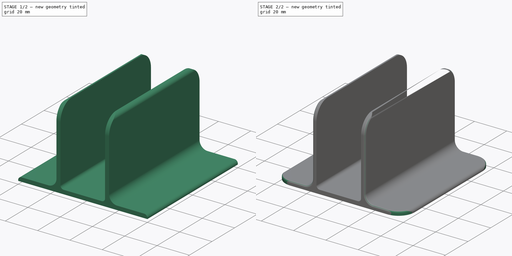
[diagram: build sequence overview — one tinted view per stage of 2, left to right]
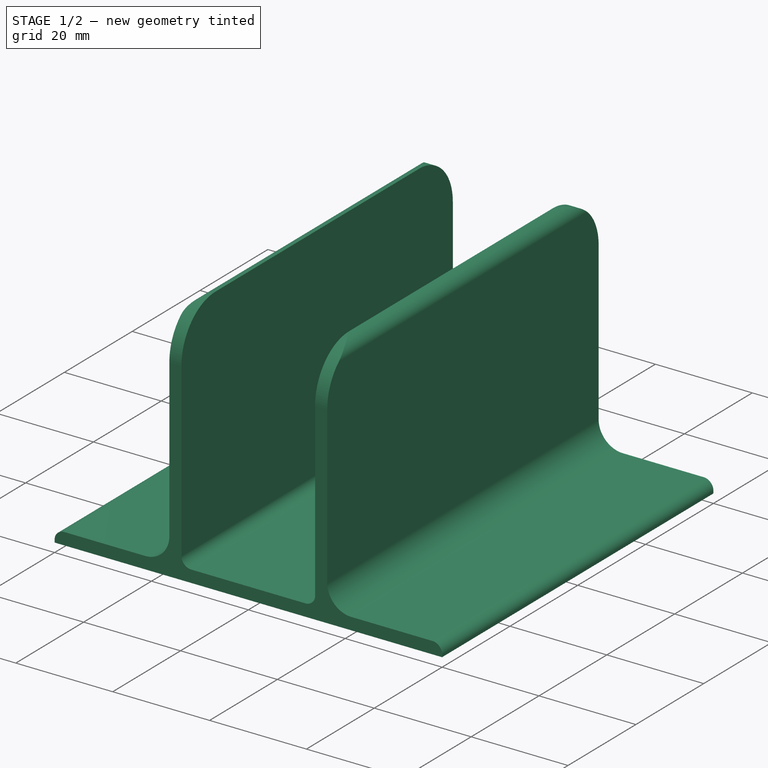
[diagram: stage 1 of 2 — iso view after this stage's code; geometry added in this stage tinted green]
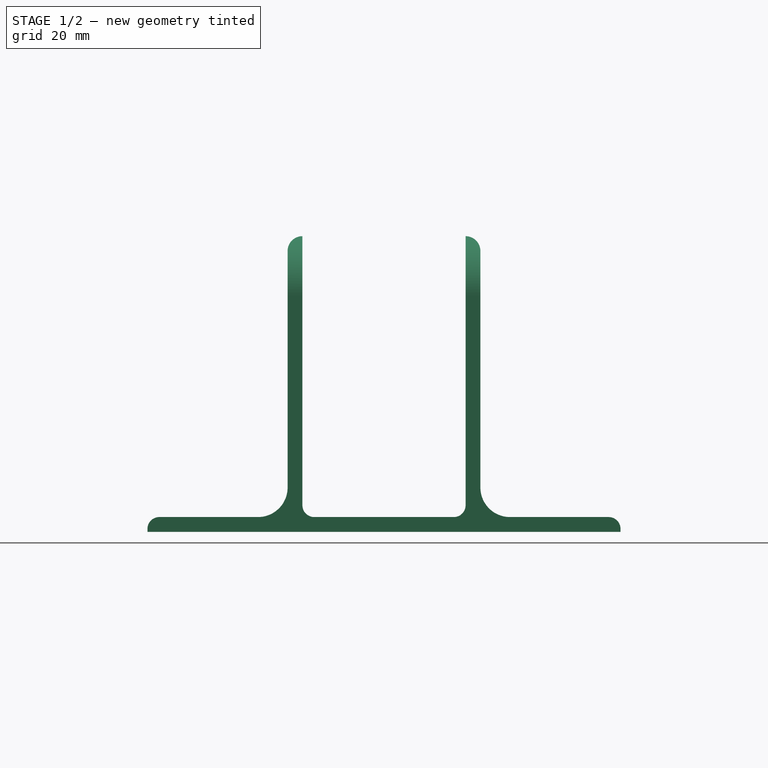
[diagram: stage 1 of 2 — front view after this stage's code; geometry added in this stage tinted green]
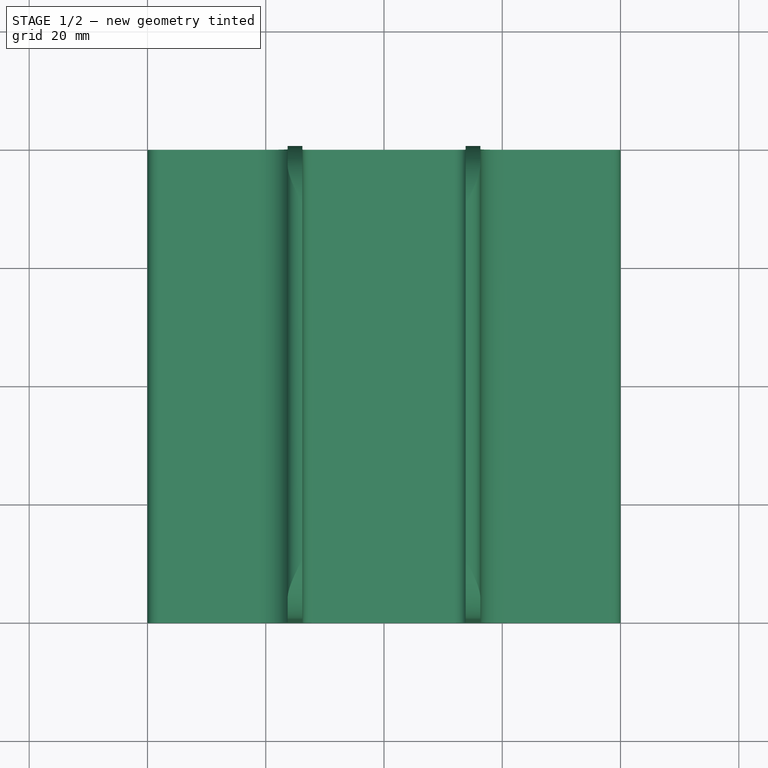
[diagram: stage 1 of 2 — top view after this stage's code; geometry added in this stage tinted green]
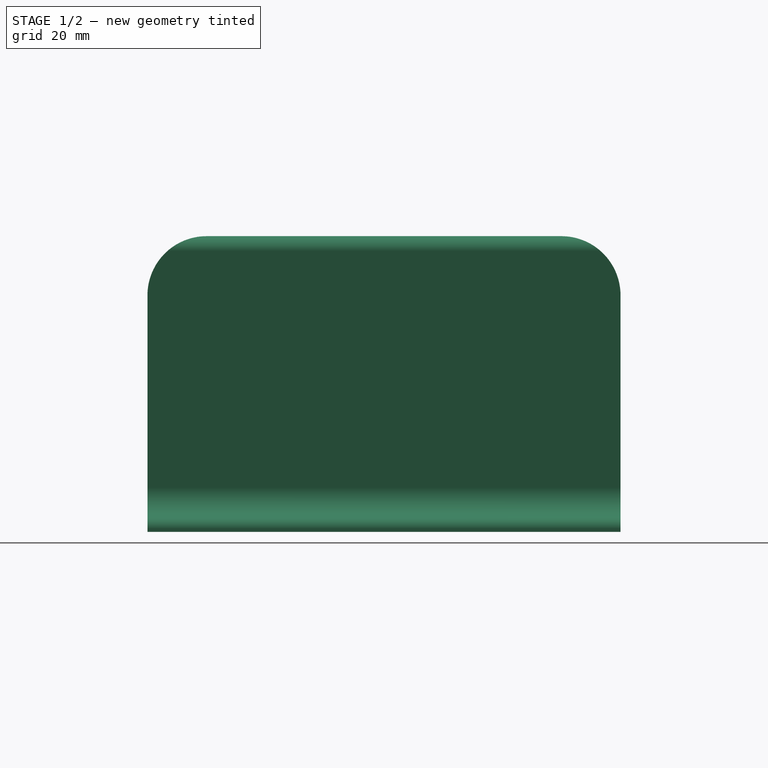
[diagram: stage 1 of 2 — right view after this stage's code; geometry added in this stage tinted green]
FCSTD DOCUMENT  (FreeCAD 1.0R39319 (Git))
Label: Charger Stand-2.0
License: Creative Commons Attribution 4.0
LicenseURL: https://creativecommons.org/licenses/by/4.0/
objects: Sketcher::SketchObject×3, PartDesign::Pocket×2, PartDesign::Pad×1, PartDesign::Fillet×1, PartDesign::Body×1
note: 19 computed .brp shape members not serialized (recipe doc carries the construction recipe); baked Part::Feature solids carry a one-line shape summary decoded from their .brp

FEATURE [Sketcher::SketchObject] Sketch
  ArcFitTolerance = 1e-06
  AttachmentSupport = -> [XZ_Plane]
  FullyConstrained = true
  MakeInternals = false
  MapMode = 5
  Placement = pos=(0,0,0) rot=(1,0,0;1.5708rad)
  sketch-geometry (18):
    g0: LineSegment StartX=-40 StartY=0 StartZ=0 EndX=40 EndY=0 EndZ=0
    g1: LineSegment StartX=38 StartY=2.5 StartZ=0 EndX=21.3 EndY=2.5 EndZ=0
    g2: LineSegment StartX=-38 StartY=2.5 StartZ=0 EndX=-21.3 EndY=2.5 EndZ=0
    g3: LineSegment StartX=-16.3 StartY=7.5 StartZ=0 EndX=-16.3 EndY=47.5 EndZ=0
    g4: LineSegment StartX=-13.8 StartY=50 StartZ=0 EndX=-13.8 EndY=4.5 EndZ=0
    g5: LineSegment StartX=-11.8 StartY=2.5 StartZ=0 EndX=11.8 EndY=2.5 EndZ=0
    g6: LineSegment StartX=13.8 StartY=4.5 StartZ=0 EndX=13.8 EndY=50 EndZ=0
    g7: LineSegment StartX=16.3 StartY=47.5 StartZ=0 EndX=16.3 EndY=7.5 EndZ=0
    g8: ArcOfCircle CenterX=-13.8 CenterY=47.5 CenterZ=0 NormalX=0 NormalY=0 NormalZ=1 AngleXU=0 Radius=2.5 StartAngle=1.5708 EndAngle=3.14159
    g9: ArcOfCircle CenterX=13.8 CenterY=47.5 CenterZ=0 NormalX=0 NormalY=0 NormalZ=1 AngleXU=0 Radius=2.5 StartAngle=-9e-16 EndAngle=1.5708
    g10: ArcOfCircle CenterX=21.3 CenterY=7.5 CenterZ=0 NormalX=0 NormalY=0 NormalZ=1 AngleXU=0 Radius=5 StartAngle=3.14159 EndAngle=4.71239
    g11: ArcOfCircle CenterX=11.8 CenterY=4.5 CenterZ=0 NormalX=0 NormalY=0 NormalZ=1 AngleXU=0 Radius=2 StartAngle=4.71239 EndAngle=6.28319
    g12: ArcOfCircle CenterX=-11.8 CenterY=4.5 CenterZ=0 NormalX=0 NormalY=0 NormalZ=1 AngleXU=0 Radius=2 StartAngle=3.14159 EndAngle=4.71239
    g13: ArcOfCircle CenterX=-21.3 CenterY=7.5 CenterZ=0 NormalX=0 NormalY=0 NormalZ=1 AngleXU=0 Radius=5 StartAngle=4.71239 EndAngle=6.28319
    g14: LineSegment StartX=40 StartY=0 StartZ=0 EndX=40 EndY=0.5 EndZ=0
    g15: LineSegment StartX=-40 StartY=0 StartZ=0 EndX=-40 EndY=0.5 EndZ=0
    g16: ArcOfCircle CenterX=38 CenterY=0.5 CenterZ=0 NormalX=0 NormalY=0 NormalZ=1 AngleXU=0 Radius=2 StartAngle=0 EndAngle=1.5708
    g17: ArcOfCircle CenterX=-38 CenterY=0.5 CenterZ=0 NormalX=0 NormalY=0 NormalZ=1 AngleXU=0 Radius=2 StartAngle=1.5708 EndAngle=3.14159
  constraints (47):
    c: PointOnObject(g0,g-1)
    c: Horizontal(g1)
    c: Horizontal(g2)
    c: Vertical(g3)
    c: Vertical(g4)
    c: Horizontal(g5)
    c: Vertical(g6)
    c: Vertical(g7)
    c: Coincident(g8,g4)
    c: Coincident(g9,g6)
    c: Symmetric(g0,g0,g-2)
    c: Tangent(g10,g1) = 1.5708
    c: Tangent(g10,g7) = -1.5708
    c: Tangent(g11,g6) = -1.5708
    c: Tangent(g11,g5) = -1.5708
    c: Tangent(g12,g5) = -1.5708
    c: Tangent(g12,g4) = -1.5708
    c: Tangent(g13,g3) = -1.5708
    c: Tangent(g13,g2) = -1.5708
    c: Tangent(g8,g3) = 1.5708
    c: Perpendicular(g8,g4)
    c: Perpendicular(g9,g6)
    c: Tangent(g9,g7) = 1.5708
    c: Coincident(g14,g0)
    c: Coincident(g15,g0)
    c: Vertical(g15)
    c: Tangent(g17,g15) = 1.5708
    c: Tangent(g17,g2) = 1.5708
    c: Tangent(g16,g14) = -1.5708
    c: Tangent(g16,g1) = -1.5708
    c: Vertical(g14)
    c: Equal(g14,g15)
    c: Equal(g17,g12)
    c: Equal(g12,g11)
    c: Equal(g11,g16)
    c: Equal(g8,g9)
    c: Equal(g2,g1)
    c: Equal(g7,g3)
    c: Equal(g4,g6)
    c: Radius(g16) = 2
    c: DistanceY(g1) = 2.5
    c: DistanceX(g4,g6) = 27.6
    c: Radius(g9) = 2.5
    c: Radius(g10) = 5
    c: Horizontal(g5,g1)
    c: DistanceY(g6) = 50
    c: DistanceX(g0,g0) = 80
FEATURE [PartDesign::Pad] Pad
  Direction = (0,-1,2e-16)
  Length = 80
  Length2 = 10
  Midplane = true
  Placement = pos=(0,0,0) rot=(1,0,0;1.5708rad)
  Profile = -> Sketch
  ReferenceAxis = -> Sketch [N_Axis]
  Refine = true
  Suppressed = false
  Type = 0
FEATURE [Sketcher::SketchObject] Sketch001
  ArcFitTolerance = 1e-06
  AttachmentSupport = -> [Pad]
  ExternalGeometry = -> [Pad]
  FullyConstrained = true
  MakeInternals = false
  MapMode = 5
  Placement = pos=(16.3,0,0) rot=(0.707107,0,0.707107;3.14159rad)
  sketch-geometry (6):
    g0: LineSegment StartX=50 StartY=40 StartZ=0 EndX=40 EndY=40 EndZ=0
    g1: LineSegment StartX=50 StartY=40 StartZ=0 EndX=50 EndY=30 EndZ=0
    g2: LineSegment StartX=50 StartY=-40 StartZ=0 EndX=50 EndY=-30 EndZ=0
    g3: LineSegment StartX=50 StartY=-40 StartZ=0 EndX=40 EndY=-40 EndZ=0
    g4: ArcOfCircle CenterX=40 CenterY=30 CenterZ=0 NormalX=0 NormalY=0 NormalZ=1 AngleXU=0 Radius=10 StartAngle=0 EndAngle=1.5708
    g5: ArcOfCircle CenterX=40 CenterY=-30 CenterZ=0 NormalX=0 NormalY=0 NormalZ=1 AngleXU=0 Radius=10 StartAngle=4.71239 EndAngle=6.28319
  constraints (17):
    c: Coincident(g0,g-3)
    c: Horizontal(g0)
    c: Coincident(g1,g0)
    c: PointOnObject(g1,g-3)
    c: Coincident(g2,g-3)
    c: PointOnObject(g2,g-3)
    c: Coincident(g3,g2)
    c: Horizontal(g3)
    c: Equal(g2,g3)
    c: Equal(g3,g1)
    c: Equal(g1,g0)
    c: Coincident(g4,g0)
    c: Coincident(g5,g2)
    c: Coincident(g5,g3)
    c: Tangent(g4,g1) = 1.5708
    c: Radius(g4) = 10
    c: Equal(g5,g4)
FEATURE [PartDesign::Pocket] Pocket
  BaseFeature = -> Pad
  Direction = (-1,0,2e-16)
  Length = 5
  Length2 = 5
  Placement = pos=(0,0,0) rot=(1,0,0;1.5708rad)
  Profile = -> Sketch001
  ReferenceAxis = -> Sketch001 [N_Axis]
  Refine = true
  Suppressed = false
  Type = 1
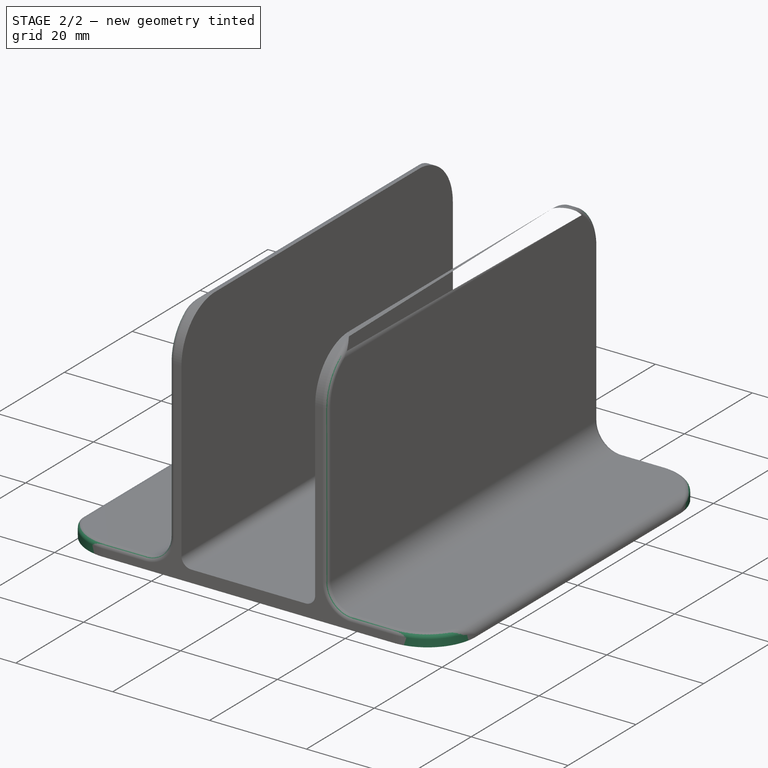
[diagram: stage 2 of 2 — iso view after this stage's code; geometry added in this stage tinted green]
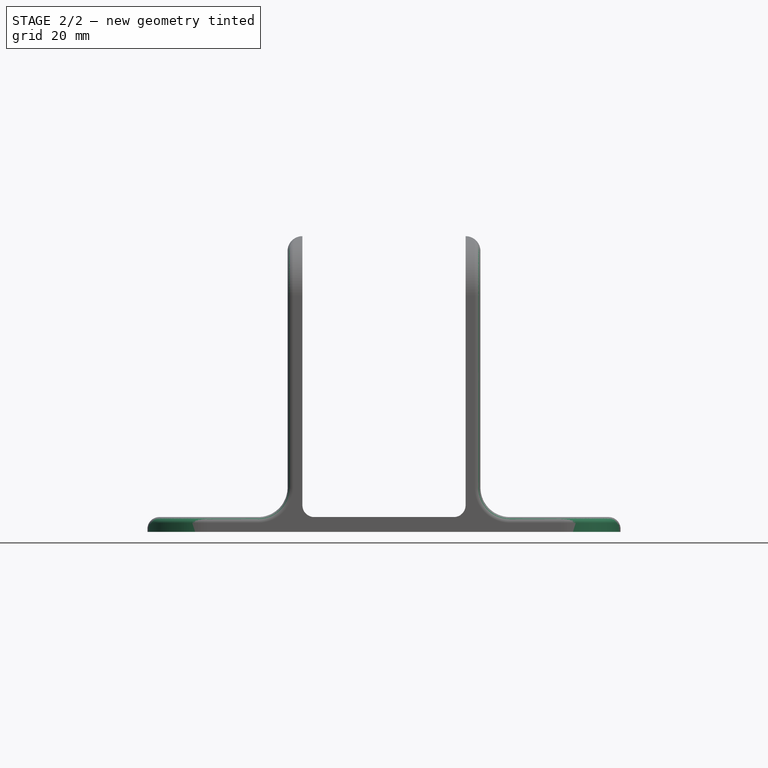
[diagram: stage 2 of 2 — front view after this stage's code; geometry added in this stage tinted green]
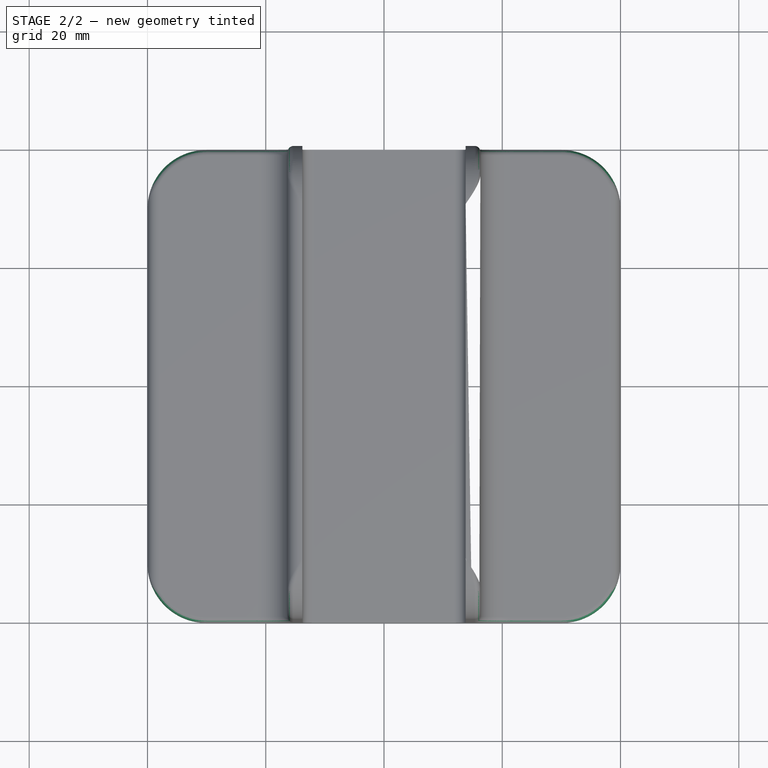
[diagram: stage 2 of 2 — top view after this stage's code; geometry added in this stage tinted green]
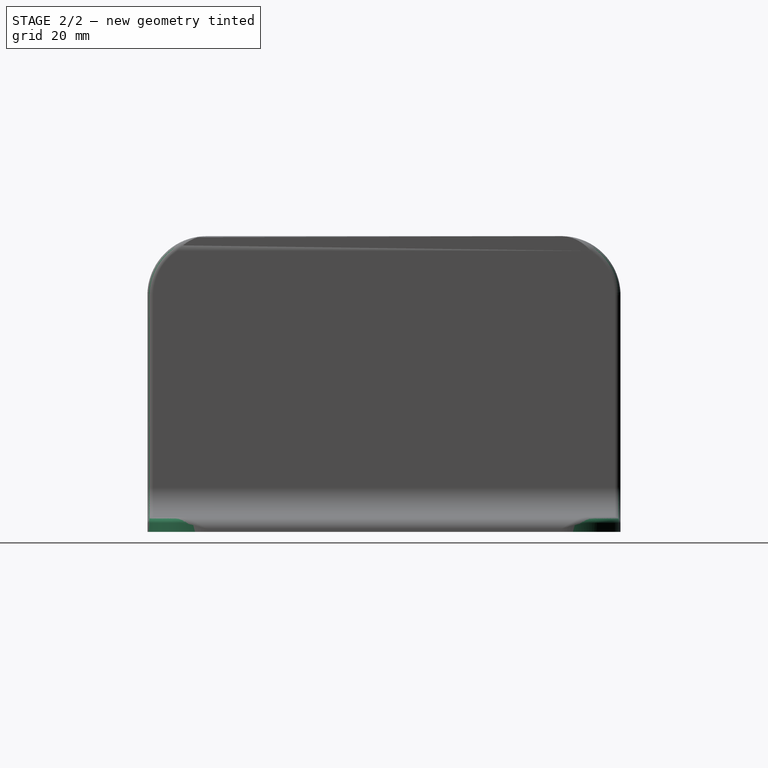
[diagram: stage 2 of 2 — right view after this stage's code; geometry added in this stage tinted green]
FEATURE [Sketcher::SketchObject] Sketch002
  ArcFitTolerance = 1e-06
  AttachmentSupport = -> [Pocket]
  ExternalGeometry = -> [Pocket]
  FullyConstrained = true
  MakeInternals = false
  MapMode = 5
  Placement = pos=(0,6e-16,2.5) rot=(0,0,1;3.14159rad)
  sketch-geometry (12):
    g0: LineSegment StartX=-40 StartY=30 StartZ=0 EndX=-40 EndY=40 EndZ=0
    g1: LineSegment StartX=-40 StartY=40 StartZ=0 EndX=-30 EndY=40 EndZ=0
    g2: LineSegment StartX=30 StartY=40 StartZ=0 EndX=40 EndY=40 EndZ=0
    g3: LineSegment StartX=40 StartY=40 StartZ=0 EndX=40 EndY=30 EndZ=0
    g4: LineSegment StartX=40 StartY=-30 StartZ=0 EndX=40 EndY=-40 EndZ=0
    g5: LineSegment StartX=40 StartY=-40 StartZ=0 EndX=30 EndY=-40 EndZ=0
    g6: LineSegment StartX=-40 StartY=-40 StartZ=0 EndX=-40 EndY=-30 EndZ=0
    g7: LineSegment StartX=-40 StartY=-40 StartZ=0 EndX=-30 EndY=-40 EndZ=0
    g8: ArcOfCircle CenterX=-30 CenterY=30 CenterZ=0 NormalX=0 NormalY=0 NormalZ=1 AngleXU=0 Radius=10 StartAngle=1.5708 EndAngle=3.14159
    g9: ArcOfCircle CenterX=30 CenterY=30 CenterZ=0 NormalX=0 NormalY=0 NormalZ=1 AngleXU=0 Radius=10 StartAngle=3e-16 EndAngle=1.5708
    g10: ArcOfCircle CenterX=30 CenterY=-30 CenterZ=0 NormalX=0 NormalY=0 NormalZ=1 AngleXU=0 Radius=10 StartAngle=4.71239 EndAngle=6.28319
    g11: ArcOfCircle CenterX=-30 CenterY=-30 CenterZ=0 NormalX=0 NormalY=0 NormalZ=1 AngleXU=0 Radius=10 StartAngle=3.14159 EndAngle=4.71239
  constraints (35):
    c: PointOnObject(g0,g-4)
    c: Coincident(g0,g-4)
    c: Coincident(g1,g0)
    c: Horizontal(g1)
    c: Coincident(g2,g-3)
    c: Horizontal(g2)
    c: Coincident(g3,g2)
    c: PointOnObject(g3,g-3)
    c: PointOnObject(g4,g-3)
    c: Coincident(g4,g-3)
    c: Coincident(g5,g4)
    c: Horizontal(g5)
    c: Coincident(g6,g-4)
    c: PointOnObject(g6,g-4)
    c: Coincident(g7,g6)
    c: Horizontal(g7)
    c: Equal(g7,g6)
    c: Equal(g6,g0)
    c: Equal(g0,g1)
    c: Equal(g1,g2)
    c: Equal(g2,g3)
    c: Equal(g3,g4)
    c: Equal(g4,g5)
    c: Coincident(g8,g0)
    c: Coincident(g8,g1)
    c: Coincident(g9,g2)
    c: Coincident(g9,g3)
    c: Coincident(g10,g5)
    c: Coincident(g11,g6)
    c: Coincident(g11,g7)
    c: Equal(g11,g8)
    c: Equal(g8,g9)
    c: Equal(g9,g10)
    c: Tangent(g10,g4) = 1.5708
    c: Radius(g9) = 10
FEATURE [PartDesign::Pocket] Pocket001
  BaseFeature = -> Pocket
  Direction = (0,0,-1)
  Length = 5
  Length2 = 5
  Placement = pos=(0,0,0) rot=(1,0,0;1.5708rad)
  Profile = -> Sketch002
  ReferenceAxis = -> Sketch002 [N_Axis]
  Refine = true
  Suppressed = false
  Type = 1
FEATURE [PartDesign::Fillet] Fillet
  Base = -> Pocket001 [Edge38,Edge25,Edge46,Edge33]
  BaseFeature = -> Pocket001
  Placement = pos=(0,0,0) rot=(1,0,0;1.5708rad)
  Radius = 1
  Refine = true
  SupportTransform = false
  Suppressed = false
  UseAllEdges = false
FEATURE [PartDesign::Body] Body  label="Charger Stand"
  AllowCompound = false
  Group = -> [Sketch,Pad,Sketch001,Pocket,Sketch002,Pocket001,Fillet]
  Origin = -> Origin
  Tip = -> Fillet
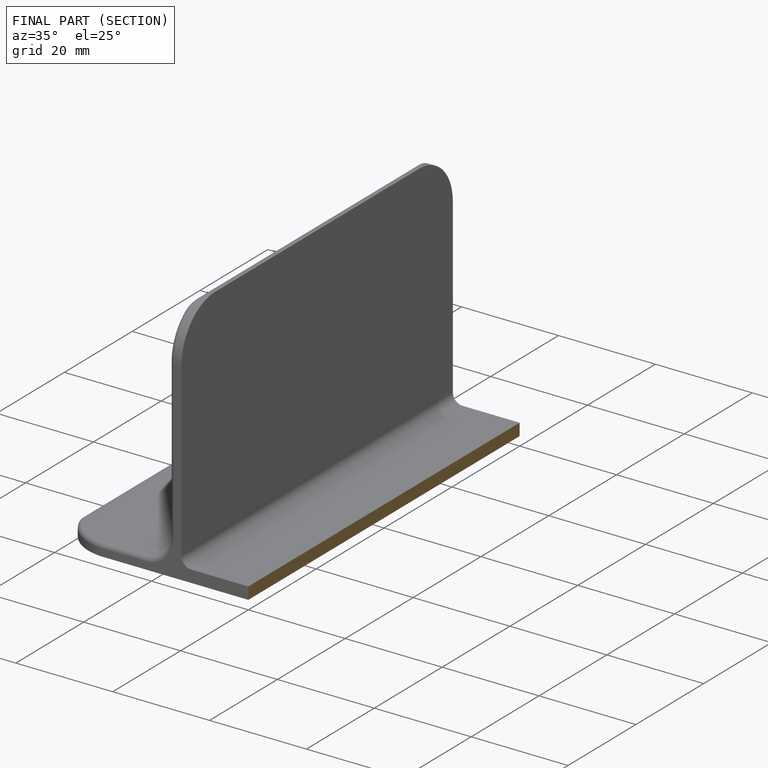
[diagram: finished part — half-section view (interior)]
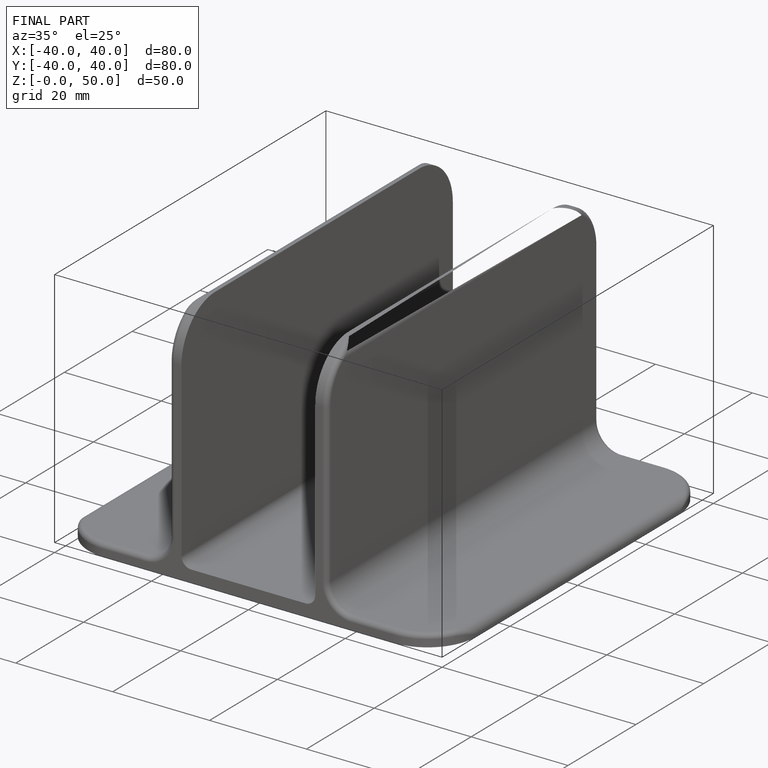
[diagram: finished part — iso view with bounding-box wireframe]
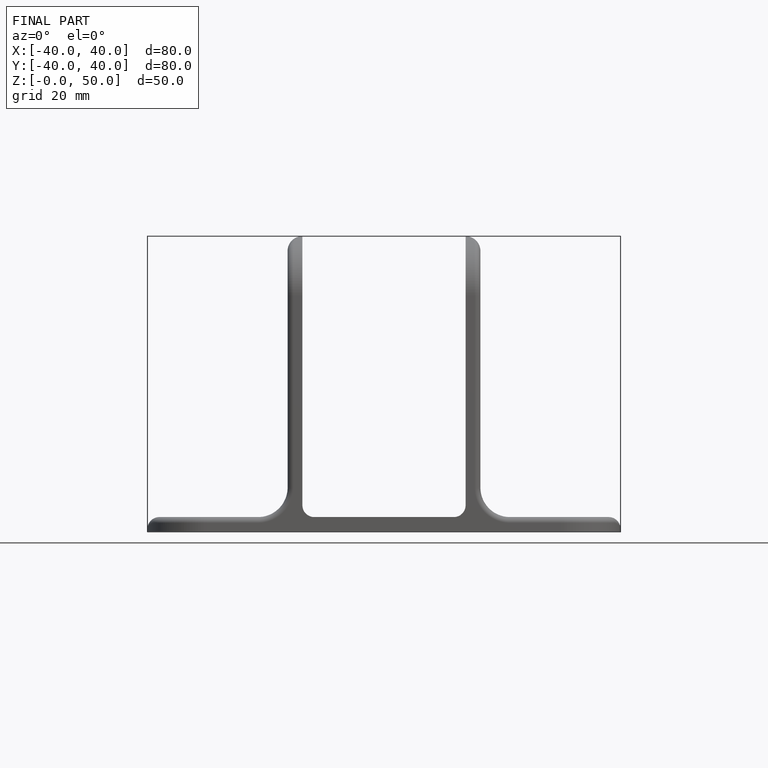
[diagram: finished part — front view with bounding-box wireframe]
